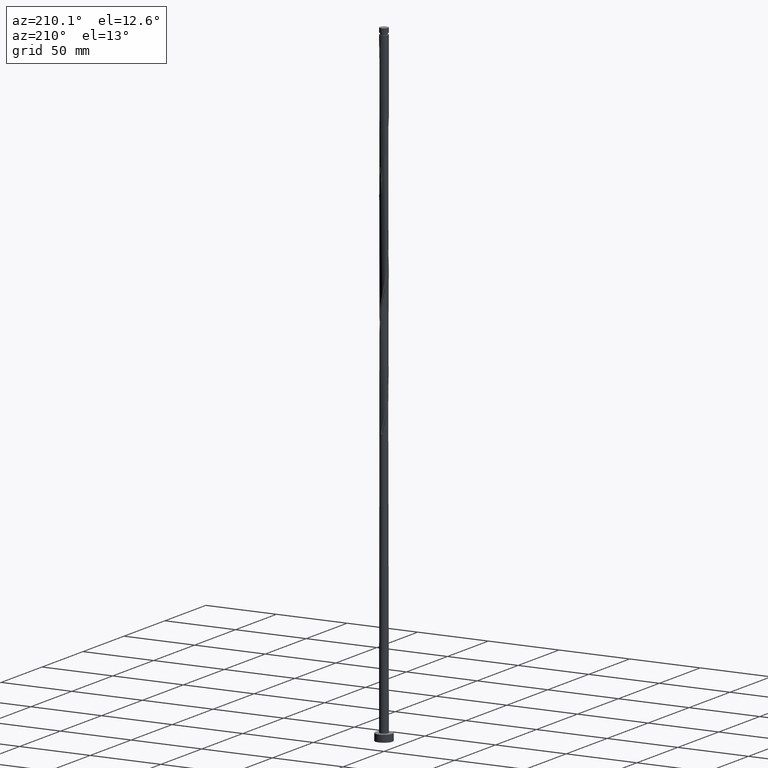
[diagram: clean part render]
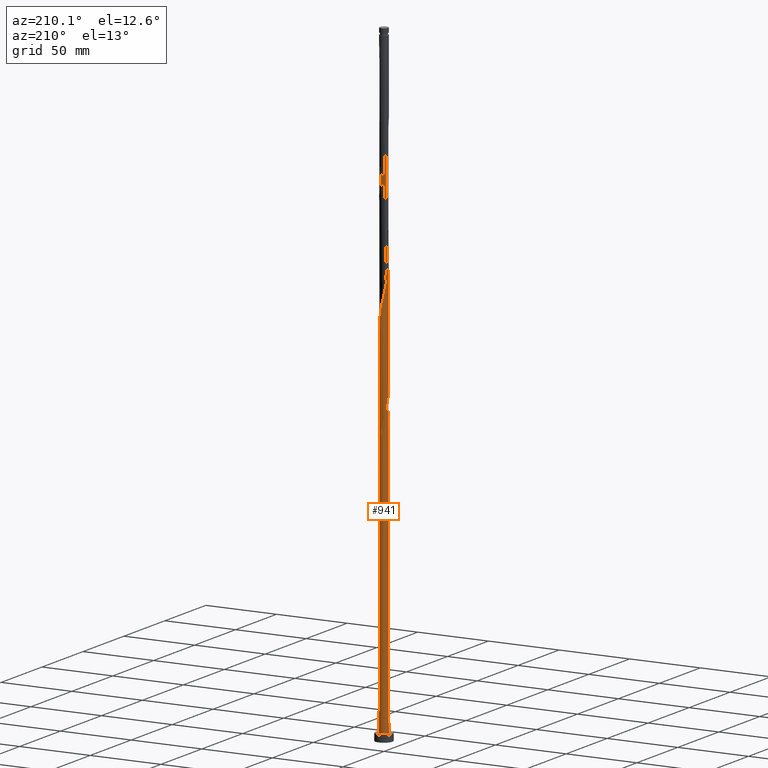
[diagram: same view with one face highlighted and labeled with its STEP entity id]
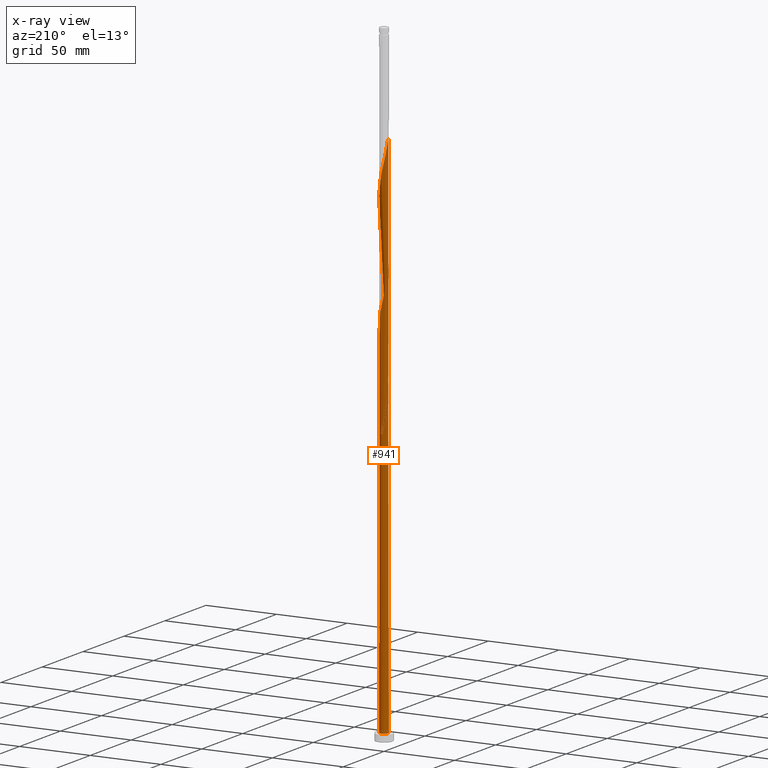
[diagram: x-ray of the same camera — body ghosted, the highlighted face saturated]
A machine part, auxiliary view. The second image highlights one B-rep face of the part: STEP entity #941.
The next image is the same camera in x-ray: the body ghosted, the highlighted face saturated — about 0% of this face is hidden behind the body in this view.
In plain terms, the highlighted cylindrical surface (bore or boss wall) has radius 3 mm, axis along (-0, -0, -1).
Its self-contained STEP definition (entity closure, byte-faithful):
#10 = CARTESIAN_POINT ( 'NONE',  ( -2.337855080563639998, 1.903086606305707695, 202.3450236198014522 ) ) ;
#19 = CARTESIAN_POINT ( 'NONE',  ( -2.337855080563639998, 1.903086606305707695, 369.0116902864680242 ) ) ;
#30 =( BOUNDED_CURVE ( )  B_SPLINE_CURVE ( 2, ( #1154, #1618, #1943, #257, #269, #406, #1311, #1476, #563, #1165, #1788, #1630, #1957, #578, #1481, #1514, #1822, #138, #1196, #718, #457 ),
 .UNSPECIFIED., .F., .T. ) 
 B_SPLINE_CURVE_WITH_KNOTS ( ( 3, 2, 2, 2, 2, 2, 2, 2, 2, 2, 3 ),
 ( 0.9295286902180871502, 0.9296875000000000000, 0.9375000000000000000, 0.9453125000000000000, 0.9531250000000000000, 0.9609375000000000000, 0.9687500000000000000, 0.9765625000000000000, 0.9843750000000000000, 0.9921875000000000000, 1.000000000000000000 ),
 .UNSPECIFIED. ) 
 CURVE ( )  GEOMETRIC_REPRESENTATION_ITEM ( )  RATIONAL_B_SPLINE_CURVE ( ( 0.9089165573359698769, 0.9090019243628746359, 0.9090909090909664592, 0.9047133878838725662, 0.9090909090909664592, 0.9047133878838725662, 0.9090909090909664592, 0.9047133878838725662, 0.9090909090909664592, 0.9047133878838725662, 0.9090909090909664592, 0.9047133878838725662, 0.9090909090909664592, 0.9047133878838725662, 0.9090909090909664592, 0.9047133878838725662, 0.9090909090909664592, 0.9047133878838725662, 0.9090909090909664592, 0.9047133878838725662, 0.9090909090909664592 ) ) 
 REPRESENTATION_ITEM ( '' )  );
#55 = CARTESIAN_POINT ( 'NONE',  ( -2.322612231291378393, -1.921660071883965815, 220.5741902864680526 ) ) ;
#61 = CARTESIAN_POINT ( 'NONE',  ( 1.656756518304341563, 2.501031355072564022, 266.1471069531347666 ) ) ;
#63 = AXIS2_PLACEMENT_3D ( 'NONE', #78, #511, #1271 ) ;
#68 = CIRCLE ( 'NONE', #101, 3.000000000000000444 ) ;
#78 = CARTESIAN_POINT ( 'NONE',  ( 0.000000000000000000, 0.000000000000000000, 193.2304402864681379 ) ) ;
#79 = DIRECTION ( 'NONE',  ( -0.000000000000000000, -0.000000000000000000, -1.000000000000000000 ) ) ;
#86 = CARTESIAN_POINT ( 'NONE',  ( 1.656756518304341563, 2.501031355072564022, 349.4804402864680810 ) ) ;
#98 = CARTESIAN_POINT ( 'NONE',  ( -1.676638408102569811, 2.487746701027921503, 281.7721069531347098 ) ) ;
#101 = AXIS2_PLACEMENT_3D ( 'NONE', #884, #295, #896 ) ;
#108 = CARTESIAN_POINT ( 'NONE',  ( -1.136995393931462317, -2.776191901540429274, 310.4179402864680810 ) ) ;
#118 = CARTESIAN_POINT ( 'NONE',  ( -2.487746701027921503, -1.676638408102569588, 302.6054402864680242 ) ) ;
#129 = CARTESIAN_POINT ( 'NONE',  ( -2.888176173499371391, 0.8635643575599516453, 290.8866902864680242 ) ) ;
#138 = CARTESIAN_POINT ( 'NONE',  ( -0.2835159908483699254, 3.001153726777527453, 197.1366902864680242 ) ) ;
#144 = EDGE_CURVE ( 'NONE', #1060, #556, #382, .T. ) ;
#155 = CARTESIAN_POINT ( 'NONE',  ( -2.776191901540428830, 1.136995393931462317, 372.9179402864680810 ) ) ;
#178 = CARTESIAN_POINT ( 'NONE',  ( 0.01195587277277016316, -2.999976176089781621, 232.2929402864680242 ) ) ;
#204 = ORIENTED_EDGE ( 'NONE', *, *, #460, .F. ) ;
#206 = CARTESIAN_POINT ( 'NONE',  ( 2.501031355072564022, -1.656756518304341563, 245.3137736198014238 ) ) ;
#207 = CARTESIAN_POINT ( 'NONE',  ( 0.000000000000000000, 0.000000000000000000, 5.000000000000000000 ) ) ;
#239 = CARTESIAN_POINT ( 'NONE',  ( -0.5969924622639756207, 2.940000000000003944, 193.2304402864680810 ) ) ;
#242 = CARTESIAN_POINT ( 'NONE',  ( 1.410426430302975209, 2.664207629581486714, 350.7825236198015091 ) ) ;
#253 = CARTESIAN_POINT ( 'NONE',  ( 2.652881170764467278, 1.431616744321173140, 342.9700236198014522 ) ) ;
#257 = CARTESIAN_POINT ( 'NONE',  ( -2.998798625402026907, 0.3074277363939129648, 215.3658569531347382 ) ) ;
#267 = CARTESIAN_POINT ( 'NONE',  ( 2.322612231291378393, 1.921660071883965148, 345.5741902864681379 ) ) ;
#269 = CARTESIAN_POINT ( 'NONE',  ( -2.939999999999999947, 0.5969924622639762868, 214.0637736198014522 ) ) ;
#278 = CARTESIAN_POINT ( 'NONE',  ( -3.001153726777532782, 0.2835159908483703695, 293.4908569531347666 ) ) ;
#284 = VERTEX_POINT ( 'NONE', #583 ) ;
#285 = CARTESIAN_POINT ( 'NONE',  ( -2.129757576223803017, 2.112849418798543155, 201.0429402864681094 ) ) ;
#290 = CARTESIAN_POINT ( 'NONE',  ( 1.903086606305707695, 2.337855080563640442, 348.1783569531349372 ) ) ;
#295 = DIRECTION ( 'NONE',  ( 0.000000000000000000, 0.000000000000000000, 1.000000000000000000 ) ) ;
#296 = CARTESIAN_POINT ( 'NONE',  ( -2.501031355072564022, 1.656756518304341119, 203.6471069531347382 ) ) ;
#300 = CARTESIAN_POINT ( 'NONE',  ( -2.944664950138451864, 0.5735401742041610351, 375.5221069531347666 ) ) ;
#304 = CARTESIAN_POINT ( 'NONE',  ( -1.431616744321174028, 2.652881170764466834, 197.1366902864681094 ) ) ;
#310 = EDGE_CURVE ( 'NONE', #489, #284, #30, .T. ) ;
#324 = CARTESIAN_POINT ( 'NONE',  ( 0.5969924622639760647, -2.940000000000003944, 234.8971069531347950 ) ) ;
#352 = CARTESIAN_POINT ( 'NONE',  ( 2.998798625402032236, 0.3074277363939136865, 254.4283569531347666 ) ) ;
#361 = CARTESIAN_POINT ( 'NONE',  ( -2.487746701027921503, -1.676638408102569588, 219.2721069531347950 ) ) ;
#371 = CARTESIAN_POINT ( 'NONE',  ( 2.776191901540428830, -1.136995393931462317, 247.9179402864680242 ) ) ;
#380 = CARTESIAN_POINT ( 'NONE',  ( -2.998798625402032236, -0.3074277363939125207, 212.7616902864681663 ) ) ;
#382 =( BOUNDED_CURVE ( )  B_SPLINE_CURVE ( 2, ( #239, #841, #1298, #304, #1667, #1351, #285, #10, #296, #1809, #568, #1330, #1796, #1360, #1515 ),
 .UNSPECIFIED., .F., .T. ) 
 B_SPLINE_CURVE_WITH_KNOTS ( ( 3, 2, 2, 2, 2, 2, 2, 3 ),
 ( 0.000000000000000000, 0.007812500000000000000, 0.01562500000000000000, 0.02343750000000000000, 0.03125000000000000000, 0.03906250000000000000, 0.04687500000000000000, 0.05452869021808712940 ),
 .UNSPECIFIED. ) 
 CURVE ( )  GEOMETRIC_REPRESENTATION_ITEM ( )  RATIONAL_B_SPLINE_CURVE ( ( 0.9090909090909713441, 0.9047133878838773402, 0.9090909090909713441, 0.9047133878838773402, 0.9090909090909713441, 0.9047133878838773402, 0.9090909090909713441, 0.9047133878838773402, 0.9090909090909713441, 0.9047133878838773402, 0.9090909090909713441, 0.9047133878838773402, 0.9090909090909713441, 0.9048023726119691634, 0.9089165573359746508 ) ) 
 REPRESENTATION_ITEM ( '' )  );
#394 = CARTESIAN_POINT ( 'NONE',  ( 2.776191901540428830, -1.136995393931462317, 331.2512736198015091 ) ) ;
#403 = EDGE_CURVE ( 'NONE', #1371, #1169, #68, .T. ) ;
#404 = CARTESIAN_POINT ( 'NONE',  ( 2.501031355072564022, -1.656756518304341563, 328.6471069531347666 ) ) ;
#406 = CARTESIAN_POINT ( 'NONE',  ( -2.881201374597972098, 0.8865571881340392757, 212.7616902864680810 ) ) ;
#415 = CARTESIAN_POINT ( 'NONE',  ( -0.8635643575599516453, -2.888176173499371391, 311.7200236198014522 ) ) ;
#428 = CARTESIAN_POINT ( 'NONE',  ( -1.159086966227606874, 2.767041272681220576, 362.5012736198013954 ) ) ;
#439 = CARTESIAN_POINT ( 'NONE',  ( 2.888176173499371391, -0.8635643575599516453, 332.5533569531348803 ) ) ;
#452 = ORIENTED_EDGE ( 'NONE', *, *, #1982, .T. ) ;
#457 = CARTESIAN_POINT ( 'NONE',  ( 0.5969924622639768419, 2.939999999999999947, 193.2304402864680526 ) ) ;
#460 = EDGE_CURVE ( 'NONE', #556, #1073, #1884, .T. ) ;
#473 = CARTESIAN_POINT ( 'NONE',  ( -3.000000000000000444, -7.455319768731686067E-16, 216.7206372644649264 ) ) ;
#489 = VERTEX_POINT ( 'NONE', #473 ) ;
#491 = DIRECTION ( 'NONE',  ( -0.000000000000000000, -0.000000000000000000, -1.000000000000000000 ) ) ;
#500 = CARTESIAN_POINT ( 'NONE',  ( -0.5969924622639755096, 2.940000000000003944, 276.5637736198015091 ) ) ;
#501 = DIRECTION ( 'NONE',  ( -1.000000000000000000, 0.000000000000000000, 0.000000000000000000 ) ) ;
#511 = DIRECTION ( 'NONE',  ( 0.000000000000000000, -0.000000000000000000, -1.000000000000000000 ) ) ;
#519 = CARTESIAN_POINT ( 'NONE',  ( -0.8635643575599516453, -2.888176173499371391, 228.3866902864680242 ) ) ;
#540 = CARTESIAN_POINT ( 'NONE',  ( -2.129757576223803017, 2.112849418798543155, 284.3762736198013954 ) ) ;
#544 = CARTESIAN_POINT ( 'NONE',  ( 1.410426430302975209, 2.664207629581486714, 267.4491902864681379 ) ) ;
#550 = CARTESIAN_POINT ( 'NONE',  ( -1.656756518304341119, -2.501031355072564022, 307.8137736198014522 ) ) ;
#555 = CARTESIAN_POINT ( 'NONE',  ( 0.8635643575599520894, 2.888176173499370947, 270.0533569531348235 ) ) ;
#556 = VERTEX_POINT ( 'NONE', #1582 ) ;
#561 = CARTESIAN_POINT ( 'NONE',  ( -0.3074277363939134644, 2.998798625402032236, 358.5950236198014522 ) ) ;
#563 = CARTESIAN_POINT ( 'NONE',  ( -2.487746701027918395, 1.676638408102568256, 208.8554402864680810 ) ) ;
#568 = CARTESIAN_POINT ( 'NONE',  ( -2.776191901540428830, 1.136995393931462317, 206.2512736198013954 ) ) ;
#574 = CARTESIAN_POINT ( 'NONE',  ( -0.8865571881340396088, 2.881201374597976539, 361.1991902864681947 ) ) ;
#578 = CARTESIAN_POINT ( 'NONE',  ( -1.410426430302971434, 2.664207629581484493, 202.3450236198014238 ) ) ;
#583 = CARTESIAN_POINT ( 'NONE',  ( 0.5969924622639767309, 2.939999999999999947, 193.2304402864680810 ) ) ;
#587 = CARTESIAN_POINT ( 'NONE',  ( -2.112849418798543599, -2.129757576223802573, 305.2096069531347666 ) ) ;
#606 = CARTESIAN_POINT ( 'NONE',  ( -1.676638408102569811, 2.487746701027921503, 365.1054402864680810 ) ) ;
#620 = CARTESIAN_POINT ( 'NONE',  ( -2.888176173499371391, 0.8635643575599516453, 374.2200236198015659 ) ) ;
#630 = CARTESIAN_POINT ( 'NONE',  ( 1.676638408102569588, -2.487746701027921947, 240.1054402864680526 ) ) ;
#646 = CARTESIAN_POINT ( 'NONE',  ( -1.136995393931462317, -2.776191901540429274, 227.0846069531347666 ) ) ;
#649 = CARTESIAN_POINT ( 'NONE',  ( -0.5969924622639756207, 2.940000000000003944, 193.2304402864680810 ) ) ;
#654 = CARTESIAN_POINT ( 'NONE',  ( 2.487746701027921059, 1.676638408102570255, 260.9387736198015091 ) ) ;
#659 = CARTESIAN_POINT ( 'NONE',  ( -2.652881170764467278, -1.431616744321173362, 217.9700236198014522 ) ) ;
#661 = CARTESIAN_POINT ( 'NONE',  ( 2.881201374597976983, 0.8865571881340381655, 257.0325236198015091 ) ) ;
#672 = CARTESIAN_POINT ( 'NONE',  ( -1.410426430302973655, -2.664207629581488934, 225.7825236198014807 ) ) ;
#675 = CARTESIAN_POINT ( 'NONE',  ( -3.000000000000000444, 0.000000000000000000, 447.6000000000000796 ) ) ;
#692 = CARTESIAN_POINT ( 'NONE',  ( -2.664207629581488934, 1.410426430302974099, 288.2825236198015659 ) ) ;
#693 = CARTESIAN_POINT ( 'NONE',  ( 2.999976176089781621, 0.01195587277276994806, 253.1262736198015091 ) ) ;
#703 = CARTESIAN_POINT ( 'NONE',  ( -2.652881170764467278, -1.431616744321173362, 301.3033569531348803 ) ) ;
#711 = CARTESIAN_POINT ( 'NONE',  ( 2.487746701027921059, 1.676638408102570255, 344.2721069531347666 ) ) ;
#718 = CARTESIAN_POINT ( 'NONE',  ( 0.3074277363939131313, 2.998798625402026907, 194.5325236198013954 ) ) ;
#724 = CARTESIAN_POINT ( 'NONE',  ( -1.431616744321174028, 2.652881170764466834, 280.4700236198014522 ) ) ;
#736 = CARTESIAN_POINT ( 'NONE',  ( -2.881201374597976539, -0.8865571881340398308, 298.6991902864681379 ) ) ;
#738 = VECTOR ( 'NONE', #491, 1000.000000000000000 ) ;
#742 = ORIENTED_EDGE ( 'NONE', *, *, #1080, .T. ) ;
#744 = CARTESIAN_POINT ( 'NONE',  ( -0.3074277363939134644, 2.998798625402032236, 275.2616902864681379 ) ) ;
#768 = CIRCLE ( 'NONE', #63, 3.000000000000000444 ) ;
#785 = DIRECTION ( 'NONE',  ( 1.000000000000000000, 0.000000000000000000, 0.000000000000000000 ) ) ;
#790 = AXIS2_PLACEMENT_3D ( 'NONE', #207, #932, #785 ) ;
#799 = CARTESIAN_POINT ( 'NONE',  ( 2.767041272681220576, 1.159086966227606874, 258.3346069531347666 ) ) ;
#813 = CARTESIAN_POINT ( 'NONE',  ( -3.000000000000004885, 1.538591617271993289E-15, 378.0735766418045500 ) ) ;
#831 = CARTESIAN_POINT ( 'NONE',  ( -2.112849418798543599, -2.129757576223802573, 221.8762736198013954 ) ) ;
#833 = CARTESIAN_POINT ( 'NONE',  ( 2.944664950138451864, -0.5735401742041628115, 250.5221069531347382 ) ) ;
#841 = CARTESIAN_POINT ( 'NONE',  ( -0.8865571881340396088, 2.881201374597976539, 194.5325236198014522 ) ) ;
#844 = CARTESIAN_POINT ( 'NONE',  ( 0.8635643575599520894, 2.888176173499370947, 353.3866902864681379 ) ) ;
#855 = CARTESIAN_POINT ( 'NONE',  ( -1.921660071883965815, 2.322612231291378393, 283.0741902864681947 ) ) ;
#867 = CARTESIAN_POINT ( 'NONE',  ( 1.136995393931462317, 2.776191901540428830, 352.0846069531347098 ) ) ;
#878 = CARTESIAN_POINT ( 'NONE',  ( 0.8865571881340396088, -2.881201374597976539, 319.5325236198015091 ) ) ;
#884 = CARTESIAN_POINT ( 'NONE',  ( 0.000000000000000000, 0.000000000000000000, 5.000000000000000000 ) ) ;
#890 = CARTESIAN_POINT ( 'NONE',  ( -2.129757576223803017, 2.112849418798543155, 367.7096069531347666 ) ) ;
#896 = DIRECTION ( 'NONE',  ( 1.000000000000000000, 0.000000000000000000, 0.000000000000000000 ) ) ;
#913 = CARTESIAN_POINT ( 'NONE',  ( -1.431616744321174028, 2.652881170764466834, 363.8033569531349372 ) ) ;
#916 = CARTESIAN_POINT ( 'NONE',  ( 1.159086966227607096, -2.767041272681220576, 237.5012736198014522 ) ) ;
#932 = DIRECTION ( 'NONE',  ( 0.000000000000000000, 0.000000000000000000, 1.000000000000000000 ) ) ;
#939 = CARTESIAN_POINT ( 'NONE',  ( -2.881201374597976539, -0.8865571881340398308, 215.3658569531347666 ) ) ;
#941 = ADVANCED_FACE ( 'NONE', ( #1584 ), #1879, .T. ) ;
#953 = CARTESIAN_POINT ( 'NONE',  ( 2.337855080563639110, -1.903086606305708361, 244.0116902864680810 ) ) ;
#954 = CARTESIAN_POINT ( 'NONE',  ( 2.940000000000003944, 0.5969924622639757317, 255.7304402864681379 ) ) ;
#955 = CARTESIAN_POINT ( 'NONE',  ( -3.000000000000000444, 0.000000000000000000, 5.000000000000000000 ) ) ;
#963 = CARTESIAN_POINT ( 'NONE',  ( -1.903086606305708139, -2.337855080563639998, 223.1783569531347666 ) ) ;
#974 = CARTESIAN_POINT ( 'NONE',  ( 2.888176173499371391, -0.8635643575599516453, 249.2200236198014807 ) ) ;
#983 = CARTESIAN_POINT ( 'NONE',  ( -2.940000000000003944, -0.5969924622639761758, 214.0637736198013954 ) ) ;
#995 = CARTESIAN_POINT ( 'NONE',  ( 2.999976176089781621, 0.01195587277276994806, 336.4596069531348235 ) ) ;
#1004 = CARTESIAN_POINT ( 'NONE',  ( 2.881201374597976983, 0.8865571881340381655, 340.3658569531347666 ) ) ;
#1017 = CARTESIAN_POINT ( 'NONE',  ( -0.5735401742041612572, -2.944664950138451864, 313.0221069531348235 ) ) ;
#1031 = CARTESIAN_POINT ( 'NONE',  ( -2.776191901540428830, 1.136995393931462317, 289.5846069531347666 ) ) ;
#1040 = CARTESIAN_POINT ( 'NONE',  ( 2.767041272681220576, 1.159086966227606874, 341.6679402864680810 ) ) ;
#1060 = VERTEX_POINT ( 'NONE', #649 ) ;
#1073 = VERTEX_POINT ( 'NONE', #813 ) ;
#1080 = EDGE_CURVE ( 'NONE', #1060, #284, #768, .T. ) ;
#1114 = LINE ( 'NONE', #1732, #738 ) ;
#1123 = DIRECTION ( 'NONE',  ( -0.000000000000000000, -0.000000000000000000, -1.000000000000000000 ) ) ;
#1131 = CARTESIAN_POINT ( 'NONE',  ( -0.8865571881340396088, 2.881201374597976539, 277.8658569531347098 ) ) ;
#1140 = CARTESIAN_POINT ( 'NONE',  ( -2.940000000000003944, -0.5969924622639761758, 297.3971069531347666 ) ) ;
#1145 = ORIENTED_EDGE ( 'NONE', *, *, #1412, .F. ) ;
#1151 = CARTESIAN_POINT ( 'NONE',  ( 0.3074277363939123542, -2.998798625402032236, 316.9283569531348235 ) ) ;
#1154 = CARTESIAN_POINT ( 'NONE',  ( -3.000000000000000444, -7.455319768731687053E-16, 216.7206372644649264 ) ) ;
#1163 = CARTESIAN_POINT ( 'NONE',  ( -0.5969924622639755096, 2.940000000000003944, 359.8971069531347666 ) ) ;
#1165 = CARTESIAN_POINT ( 'NONE',  ( -2.322612231291373952, 1.921660071883963816, 207.5533569531347382 ) ) ;
#1169 = VERTEX_POINT ( 'NONE', #955 ) ;
#1176 = CARTESIAN_POINT ( 'NONE',  ( -2.944664950138451864, 0.5735401742041610351, 292.1887736198014522 ) ) ;
#1188 = CARTESIAN_POINT ( 'NONE',  ( 2.129757576223802573, -2.112849418798543599, 326.0429402864681947 ) ) ;
#1196 = CARTESIAN_POINT ( 'NONE',  ( 0.01195587277277157696, 2.999976176089777624, 195.8346069531347666 ) ) ;
#1223 = CARTESIAN_POINT ( 'NONE',  ( 2.664207629581487602, -1.410426430302975209, 246.6158569531347950 ) ) ;
#1228 = CARTESIAN_POINT ( 'NONE',  ( -1.921660071883965815, 2.322612231291378393, 366.4075236198015091 ) ) ;
#1248 = CARTESIAN_POINT ( 'NONE',  ( -3.000000000000004441, 1.538591617271993289E-15, 211.4069099751379497 ) ) ;
#1250 = CARTESIAN_POINT ( 'NONE',  ( -0.5735401742041612572, -2.944664950138451864, 229.6887736198013954 ) ) ;
#1271 = DIRECTION ( 'NONE',  ( -1.000000000000000000, 0.000000000000000000, 0.000000000000000000 ) ) ;
#1288 = CARTESIAN_POINT ( 'NONE',  ( -0.2835159908483707025, -3.001153726777531894, 314.3241902864680810 ) ) ;
#1298 = CARTESIAN_POINT ( 'NONE',  ( -1.159086966227606874, 2.767041272681220576, 195.8346069531347666 ) ) ;
#1300 = CARTESIAN_POINT ( 'NONE',  ( -2.999976176089781621, -0.01195587277277101491, 294.7929402864681379 ) ) ;
#1309 = CARTESIAN_POINT ( 'NONE',  ( 0.5735401742041631445, 2.944664950138451864, 354.6887736198014522 ) ) ;
#1311 = CARTESIAN_POINT ( 'NONE',  ( -2.767041272681216579, 1.159086966227606208, 211.4596069531347950 ) ) ;
#1322 = CARTESIAN_POINT ( 'NONE',  ( 2.940000000000003944, 0.5969924622639757317, 339.0637736198013954 ) ) ;
#1330 = CARTESIAN_POINT ( 'NONE',  ( -2.888176173499371391, 0.8635643575599516453, 207.5533569531347666 ) ) ;
#1332 = CARTESIAN_POINT ( 'NONE',  ( -0.01195587277276973816, 2.999976176089781621, 273.9596069531348235 ) ) ;
#1335 = CARTESIAN_POINT ( 'NONE',  ( 1.159086966227607096, -2.767041272681220576, 320.8346069531347098 ) ) ;
#1351 = CARTESIAN_POINT ( 'NONE',  ( -1.921660071883965815, 2.322612231291378393, 199.7408569531347950 ) ) ;
#1360 = CARTESIAN_POINT ( 'NONE',  ( -3.000000000000005773, 0.2894394447869459430, 210.1309298697219106 ) ) ;
#1362 = EDGE_CURVE ( 'NONE', #1169, #1371, #1660, .T. ) ;
#1364 = CARTESIAN_POINT ( 'NONE',  ( -3.000000000000004885, 1.538591617271993289E-15, 378.0735766418045500 ) ) ;
#1371 = VERTEX_POINT ( 'NONE', #1545 ) ;
#1411 = CARTESIAN_POINT ( 'NONE',  ( 1.903086606305707695, 2.337855080563640442, 264.8450236198015091 ) ) ;
#1412 = EDGE_CURVE ( 'NONE', #1073, #489, #1114, .T. ) ;
#1437 = CARTESIAN_POINT ( 'NONE',  ( 0.5969924622639760647, -2.940000000000003944, 318.2304402864680810 ) ) ;
#1439 = CARTESIAN_POINT ( 'NONE',  ( 3.001153726777532338, -0.2835159908483710356, 251.8241902864680810 ) ) ;
#1451 = CARTESIAN_POINT ( 'NONE',  ( 2.998798625402032236, 0.3074277363939136865, 337.7616902864681379 ) ) ;
#1462 = CARTESIAN_POINT ( 'NONE',  ( -2.322612231291378393, -1.921660071883965815, 303.9075236198015091 ) ) ;
#1473 = CARTESIAN_POINT ( 'NONE',  ( -2.501031355072564022, 1.656756518304341119, 286.9804402864680810 ) ) ;
#1476 = CARTESIAN_POINT ( 'NONE',  ( -2.652881170764462837, 1.431616744321172474, 210.1575236198013670 ) ) ;
#1481 = CARTESIAN_POINT ( 'NONE',  ( -1.136995393931460319, 2.776191901540426166, 201.0429402864681379 ) ) ;
#1483 = CARTESIAN_POINT ( 'NONE',  ( 0.2835159908483711466, 3.001153726777532338, 272.6575236198015659 ) ) ;
#1488 = CARTESIAN_POINT ( 'NONE',  ( -2.337855080563639998, 1.903086606305707695, 285.6783569531348235 ) ) ;
#1514 = CARTESIAN_POINT ( 'NONE',  ( -0.8635643575599494248, 2.888176173499367394, 199.7408569531347382 ) ) ;
#1515 = CARTESIAN_POINT ( 'NONE',  ( -3.000000000000004441, 1.538591617271993289E-15, 211.4069099751379497 ) ) ;
#1528 = CARTESIAN_POINT ( 'NONE',  ( 2.129757576223802573, -2.112849418798543599, 242.7096069531347382 ) ) ;
#1544 = CARTESIAN_POINT ( 'NONE',  ( 1.431616744321173362, -2.652881170764467278, 238.8033569531348235 ) ) ;
#1545 = CARTESIAN_POINT ( 'NONE',  ( 3.000000000000000444, 0.000000000000000000, 5.000000000000000000 ) ) ;
#1552 = CARTESIAN_POINT ( 'NONE',  ( -1.656756518304341119, -2.501031355072564022, 224.4804402864680526 ) ) ;
#1582 = CARTESIAN_POINT ( 'NONE',  ( -3.000000000000004885, 1.538591617271993289E-15, 211.4069099751379497 ) ) ;
#1584 = FACE_OUTER_BOUND ( 'NONE', #1983, .T. ) ;
#1593 = CARTESIAN_POINT ( 'NONE',  ( -2.767041272681221020, -1.159086966227606874, 216.6679402864680810 ) ) ;
#1597 = LINE ( 'NONE', #675, #1832 ) ;
#1605 = CARTESIAN_POINT ( 'NONE',  ( -2.998798625402032236, -0.3074277363939125207, 296.0950236198014522 ) ) ;
#1615 = CARTESIAN_POINT ( 'NONE',  ( -1.410426430302973655, -2.664207629581488934, 309.1158569531348235 ) ) ;
#1618 = CARTESIAN_POINT ( 'NONE',  ( -3.000000000000000000, 0.005977960122783068479, 216.6942837099476549 ) ) ;
#1628 = CARTESIAN_POINT ( 'NONE',  ( 2.337855080563639110, -1.903086606305708361, 327.3450236198015091 ) ) ;
#1630 = CARTESIAN_POINT ( 'NONE',  ( -1.903086606305704365, 2.337855080563637777, 204.9491902864680526 ) ) ;
#1640 = CARTESIAN_POINT ( 'NONE',  ( -0.01195587277276973816, 2.999976176089781621, 357.2929402864680810 ) ) ;
#1651 = CARTESIAN_POINT ( 'NONE',  ( 2.112849418798543599, 2.129757576223802129, 346.8762736198014522 ) ) ;
#1656 = ORIENTED_EDGE ( 'NONE', *, *, #403, .T. ) ;
#1660 = CIRCLE ( 'NONE', #790, 3.000000000000000444 ) ;
#1667 = CARTESIAN_POINT ( 'NONE',  ( -1.676638408102569811, 2.487746701027921503, 198.4387736198014238 ) ) ;
#1670 = CARTESIAN_POINT ( 'NONE',  ( -2.664207629581488934, 1.410426430302974099, 371.6158569531347666 ) ) ;
#1678 = CARTESIAN_POINT ( 'NONE',  ( 0.5735401742041631445, 2.944664950138451864, 271.3554402864681379 ) ) ;
#1697 = CARTESIAN_POINT ( 'NONE',  ( 0.8865571881340396088, -2.881201374597976539, 236.1991902864680810 ) ) ;
#1718 = CARTESIAN_POINT ( 'NONE',  ( 1.921660071883965815, -2.322612231291378393, 241.4075236198014807 ) ) ;
#1719 = CARTESIAN_POINT ( 'NONE',  ( -1.159086966227606874, 2.767041272681220576, 279.1679402864679673 ) ) ;
#1726 = CARTESIAN_POINT ( 'NONE',  ( 2.652881170764467278, 1.431616744321173140, 259.6366902864681379 ) ) ;
#1732 = CARTESIAN_POINT ( 'NONE',  ( -3.000000000000000444, 0.000000000000000000, 447.6000000000000796 ) ) ;
#1737 = CARTESIAN_POINT ( 'NONE',  ( 2.322612231291378393, 1.921660071883965148, 262.2408569531348235 ) ) ;
#1750 = CARTESIAN_POINT ( 'NONE',  ( -2.999976176089781621, -0.01195587277277101491, 211.4596069531348235 ) ) ;
#1765 = CARTESIAN_POINT ( 'NONE',  ( 1.431616744321173362, -2.652881170764467278, 322.1366902864680810 ) ) ;
#1775 = CARTESIAN_POINT ( 'NONE',  ( 1.921660071883965815, -2.322612231291378393, 324.7408569531348235 ) ) ;
#1785 = CARTESIAN_POINT ( 'NONE',  ( 0.01195587277277016316, -2.999976176089781621, 315.6262736198013954 ) ) ;
#1788 = CARTESIAN_POINT ( 'NONE',  ( -2.112849418798540047, 2.129757576223800797, 206.2512736198014238 ) ) ;
#1794 = ORIENTED_EDGE ( 'NONE', *, *, #144, .F. ) ;
#1796 = CARTESIAN_POINT ( 'NONE',  ( -2.944664950138451864, 0.5735401742041610351, 208.8554402864680526 ) ) ;
#1800 = CARTESIAN_POINT ( 'NONE',  ( 3.001153726777532338, -0.2835159908483710356, 335.1575236198016228 ) ) ;
#1801 = ORIENTED_EDGE ( 'NONE', *, *, #1362, .T. ) ;
#1809 = CARTESIAN_POINT ( 'NONE',  ( -2.664207629581488934, 1.410426430302974099, 204.9491902864681379 ) ) ;
#1813 = CARTESIAN_POINT ( 'NONE',  ( 2.664207629581487602, -1.410426430302975209, 329.9491902864680810 ) ) ;
#1822 = CARTESIAN_POINT ( 'NONE',  ( -0.5735401742041599249, 2.944664950138447423, 198.4387736198014522 ) ) ;
#1832 = VECTOR ( 'NONE', #79, 1000.000000000000000 ) ;
#1837 = CARTESIAN_POINT ( 'NONE',  ( -2.501031355072564022, 1.656756518304341119, 370.3137736198013954 ) ) ;
#1857 = CARTESIAN_POINT ( 'NONE',  ( -3.000000000000002665, 0.2894394447869574893, 376.7975965363884256 ) ) ;
#1867 = CARTESIAN_POINT ( 'NONE',  ( 0.3074277363939123542, -2.998798625402032236, 233.5950236198014238 ) ) ;
#1868 = CARTESIAN_POINT ( 'NONE',  ( 0.000000000000000000, 0.000000000000000000, 447.6000000000000796 ) ) ;
#1876 = CARTESIAN_POINT ( 'NONE',  ( -3.000000000000004885, -0.005977960122781500289, 211.4332635296552212 ) ) ;
#1878 = CARTESIAN_POINT ( 'NONE',  ( -0.2835159908483707025, -3.001153726777531894, 230.9908569531347950 ) ) ;
#1879 = CYLINDRICAL_SURFACE ( 'NONE', #1962, 3.000000000000000444 ) ;
#1883 = CARTESIAN_POINT ( 'NONE',  ( 2.112849418798543599, 2.129757576223802129, 263.5429402864680810 ) ) ;
#1884 =( BOUNDED_CURVE ( )  B_SPLINE_CURVE ( 2, ( #1248, #1876, #1750, #380, #983, #939, #1593, #659, #361, #55, #831, #963, #1552, #672, #646, #519, #1250, #1878, #178, #1867, #324, #1697, #916, #1544, #630, #1718, #1528, #953, #206, #1223, #371, #974, #833, #1439, #693, #352, #954, #661, #799, #1726, #654, #1737, #1883, #1411, #61, #544, #1934, #555, #1678, #1483, #1332, #744, #500, #1131, #1719, #724, #98, #855, #540, #1488, #1473, #692, #1031, #129, #1176, #278, #1300, #1605, #1140, #736, #1922, #703, #118, #1462, #587, #1941, #550, #1615, #108, #415, #1017, #1288, #1785, #1151, #1437, #878, #1335, #1765, #1930, #1775, #1188, #1628, #404, #1813, #394, #439, #1967, #1800, #995, #1451, #1322, #1004, #1040, #253, #711, #267, #1651, #290, #86, #242, #867, #844, #1309, #1953, #1640, #561, #1163, #574, #428, #913, #606, #1228, #890, #19, #1837, #1670, #155, #620, #300, #1857, #1364 ),
 .UNSPECIFIED., .F., .T. ) 
 B_SPLINE_CURVE_WITH_KNOTS ( ( 3, 2, 2, 2, 2, 2, 2, 2, 2, 2, 2, 2, 2, 2, 2, 2, 2, 2, 2, 2, 2, 2, 2, 2, 2, 2, 2, 2, 2, 2, 2, 2, 2, 2, 2, 2, 2, 2, 2, 2, 2, 2, 2, 2, 2, 2, 2, 2, 2, 2, 2, 2, 2, 2, 2, 2, 2, 2, 2, 2, 2, 2, 2, 2, 2, 3 ),
 ( 0.05452869021808712940, 0.05468750000000000000, 0.06250000000000000000, 0.07031250000000000000, 0.07812500000000000000, 0.08593750000000000000, 0.09375000000000000000, 0.1015625000000000000, 0.1093750000000000000, 0.1171875000000000000, 0.1250000000000000000, 0.1328125000000000000, 0.1406250000000000000, 0.1484375000000000000, 0.1562500000000000000, 0.1640625000000000000, 0.1718750000000000000, 0.1796875000000000000, 0.1875000000000000000, 0.1953125000000000000, 0.2031250000000000000, 0.2109375000000000000, 0.2187500000000000000, 0.2265625000000000000, 0.2343750000000000000, 0.2421875000000000000, 0.2500000000000000000, 0.2578125000000000000, 0.2656250000000000000, 0.2734375000000000000, 0.2812500000000000000, 0.2890625000000000000, 0.2968750000000000000, 0.3046875000000000000, 0.3125000000000000000, 0.3203125000000000000, 0.3281250000000000000, 0.3359375000000000000, 0.3437500000000000000, 0.3515625000000000000, 0.3593750000000000000, 0.3671875000000000000, 0.3750000000000000000, 0.3828125000000000000, 0.3906250000000000000, 0.3984375000000000000, 0.4062500000000000000, 0.4140625000000000000, 0.4218750000000000000, 0.4296875000000000000, 0.4375000000000000000, 0.4453125000000000000, 0.4531250000000000000, 0.4609375000000000000, 0.4687500000000000000, 0.4765625000000000000, 0.4843750000000000000, 0.4921875000000000000, 0.5000000000000000000, 0.5078125000000000000, 0.5156250000000000000, 0.5234375000000000000, 0.5312500000000000000, 0.5390625000000000000, 0.5468750000000000000, 0.5545286902180868172 ),
 .UNSPECIFIED. ) 
 CURVE ( )  GEOMETRIC_REPRESENTATION_ITEM ( )  RATIONAL_B_SPLINE_CURVE ( ( 0.9089165573359746508, 0.9090019243628795209, 0.9090909090909713441, 0.9047133878838773402, 0.9090909090909713441, 0.9047133878838773402, 0.9090909090909713441, 0.9047133878838773402, 0.9090909090909713441, 0.9047133878838773402, 0.9090909090909713441, 0.9047133878838773402, 0.9090909090909713441, 0.9047133878838773402, 0.9090909090909713441, 0.9047133878838773402, 0.9090909090909713441, 0.9047133878838773402, 0.9090909090909713441, 0.9047133878838773402, 0.9090909090909713441, 0.9047133878838773402, 0.9090909090909713441, 0.9047133878838773402, 0.9090909090909713441, 0.9047133878838773402, 0.9090909090909713441, 0.9047133878838773402, 0.9090909090909713441, 0.9047133878838773402, 0.9090909090909713441, 0.9047133878838773402, 0.9090909090909713441, 0.9047133878838773402, 0.9090909090909713441, 0.9047133878838773402, 0.9090909090909713441, 0.9047133878838773402, 0.9090909090909713441, 0.9047133878838773402, 0.9090909090909713441, 0.9047133878838773402, 0.9090909090909713441, 0.9047133878838773402, 0.9090909090909713441, 0.9047133878838773402, 0.9090909090909713441, 0.9047133878838773402, 0.9090909090909713441, 0.9047133878838773402, 0.9090909090909713441, 0.9047133878838773402, 0.9090909090909713441, 0.9047133878838773402, 0.9090909090909713441, 0.9047133878838773402, 0.9090909090909713441, 0.9047133878838773402, 0.9090909090909713441, 0.9047133878838773402, 0.9090909090909713441, 0.9047133878838773402, 0.9090909090909713441, 0.9047133878838773402, 0.9090909090909713441, 0.9047133878838773402, 0.9090909090909713441, 0.9047133878838773402, 0.9090909090909713441, 0.9047133878838773402, 0.9090909090909713441, 0.9047133878838773402, 0.9090909090909713441, 0.9047133878838773402, 0.9090909090909713441, 0.9047133878838773402, 0.9090909090909713441, 0.9047133878838773402, 0.9090909090909713441, 0.9047133878838773402, 0.9090909090909713441, 0.9047133878838773402, 0.9090909090909713441, 0.9047133878838773402, 0.9090909090909713441, 0.9047133878838773402, 0.9090909090909713441, 0.9047133878838773402, 0.9090909090909713441, 0.9047133878838773402, 0.9090909090909713441, 0.9047133878838773402, 0.9090909090909713441, 0.9047133878838773402, 0.9090909090909713441, 0.9047133878838773402, 0.9090909090909713441, 0.9047133878838773402, 0.9090909090909713441, 0.9047133878838773402, 0.9090909090909713441, 0.9047133878838773402, 0.9090909090909713441, 0.9047133878838773402, 0.9090909090909713441, 0.9047133878838773402, 0.9090909090909713441, 0.9047133878838773402, 0.9090909090909713441, 0.9047133878838773402, 0.9090909090909713441, 0.9047133878838773402, 0.9090909090909713441, 0.9047133878838773402, 0.9090909090909713441, 0.9047133878838773402, 0.9090909090909713441, 0.9047133878838773402, 0.9090909090909713441, 0.9047133878838773402, 0.9090909090909713441, 0.9047133878838773402, 0.9090909090909713441, 0.9047133878838773402, 0.9090909090909713441, 0.9047133878838773402, 0.9090909090909713441, 0.9047133878838773402, 0.9090909090909713441, 0.9048023726119693855, 0.9089165573359743178 ) ) 
 REPRESENTATION_ITEM ( '' )  );
#1922 = CARTESIAN_POINT ( 'NONE',  ( -2.767041272681221020, -1.159086966227606874, 300.0012736198014522 ) ) ;
#1930 = CARTESIAN_POINT ( 'NONE',  ( 1.676638408102569588, -2.487746701027921947, 323.4387736198015091 ) ) ;
#1934 = CARTESIAN_POINT ( 'NONE',  ( 1.136995393931462317, 2.776191901540428830, 268.7512736198015091 ) ) ;
#1935 = ORIENTED_EDGE ( 'NONE', *, *, #1982, .F. ) ;
#1941 = CARTESIAN_POINT ( 'NONE',  ( -1.903086606305708139, -2.337855080563639998, 306.5116902864680242 ) ) ;
#1943 = CARTESIAN_POINT ( 'NONE',  ( -2.999976176089777624, 0.01195587277277179034, 216.6679402864680810 ) ) ;
#1948 = ORIENTED_EDGE ( 'NONE', *, *, #310, .F. ) ;
#1953 = CARTESIAN_POINT ( 'NONE',  ( 0.2835159908483711466, 3.001153726777532338, 355.9908569531347666 ) ) ;
#1957 = CARTESIAN_POINT ( 'NONE',  ( -1.656756518304338233, 2.501031355072561801, 203.6471069531347382 ) ) ;
#1962 = AXIS2_PLACEMENT_3D ( 'NONE', #1868, #1123, #501 ) ;
#1967 = CARTESIAN_POINT ( 'NONE',  ( 2.944664950138451864, -0.5735401742041628115, 333.8554402864679673 ) ) ;
#1982 = EDGE_CURVE ( 'NONE', #556, #1169, #1597, .T. ) ;
#1983 = EDGE_LOOP ( 'NONE', ( #1145, #204, #452, #1801, #1656, #1935, #1794, #742, #1948 ) ) ;